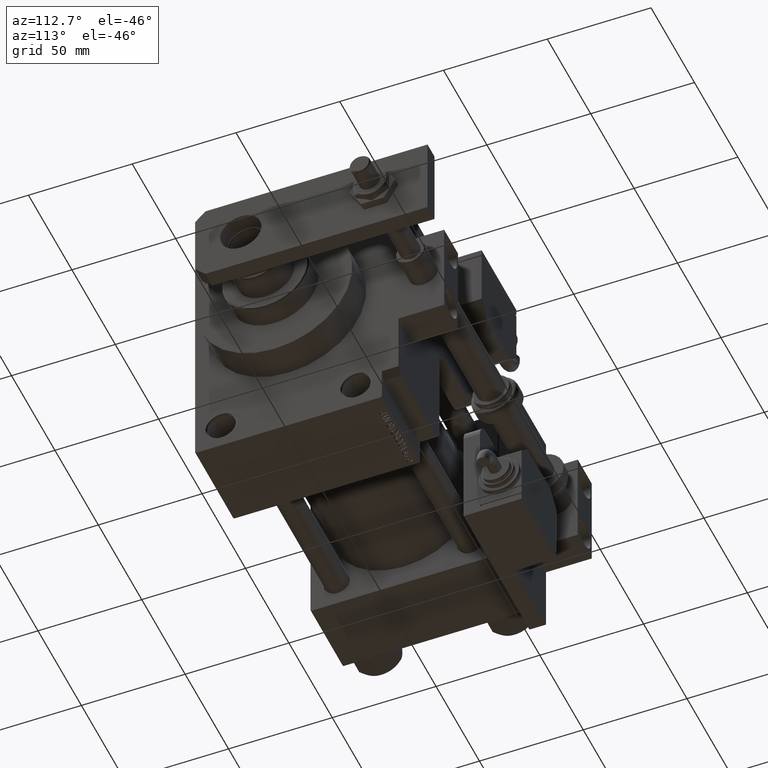
[diagram: clean part render]
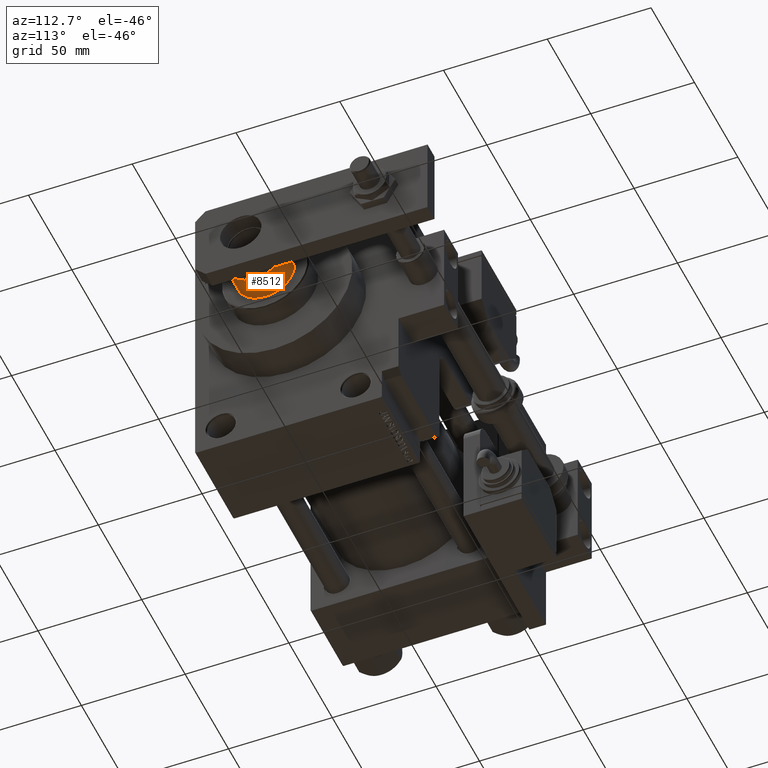
[diagram: same view with one face highlighted and labeled with its STEP entity id]
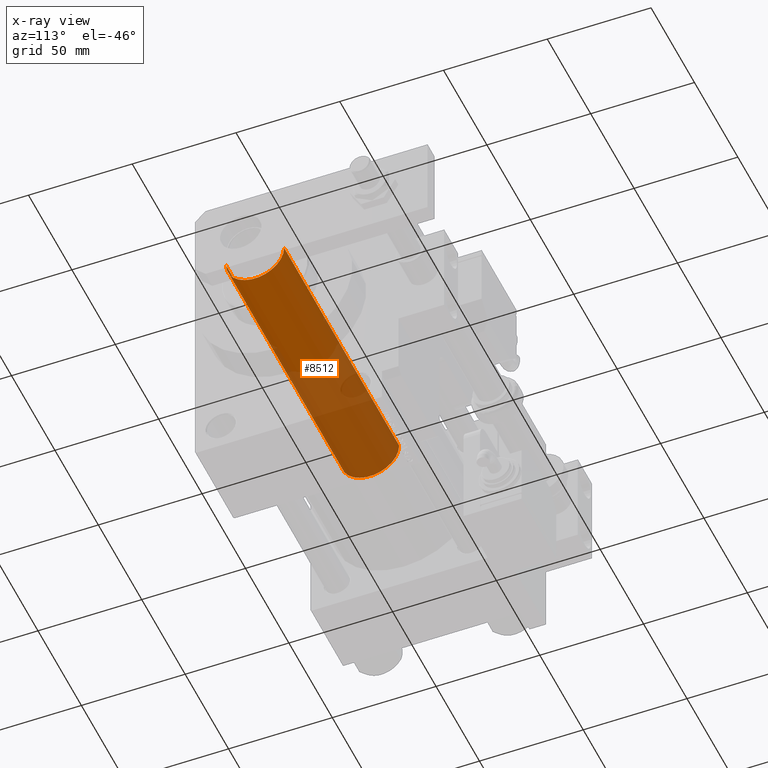
[diagram: x-ray of the same camera — body ghosted, the highlighted face saturated]
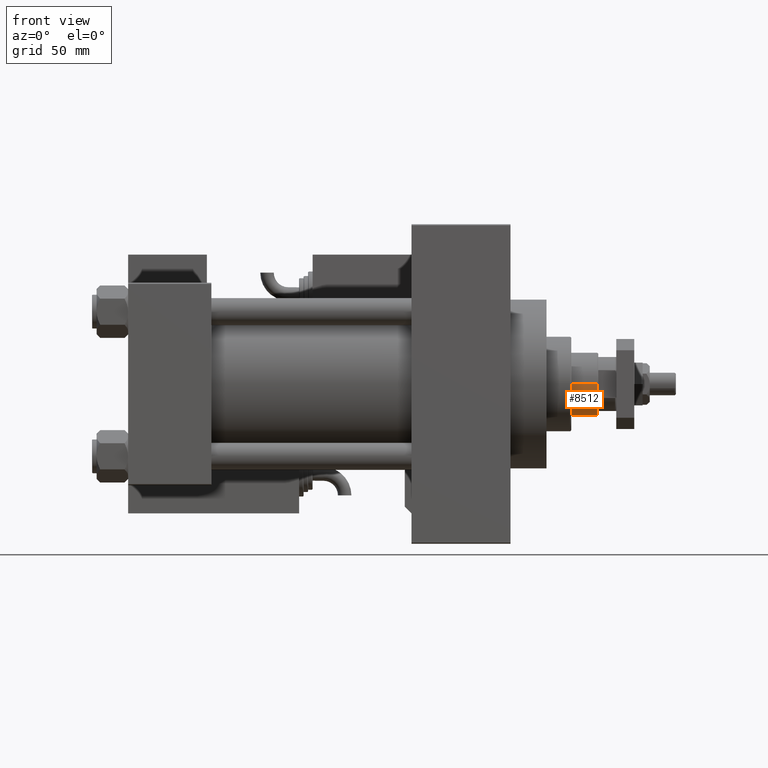
[diagram: same view with one face highlighted and labeled with its STEP entity id]
A machine part, auxiliary view. The second image highlights one B-rep face of the part: STEP entity #8512.
The next image is the same camera in x-ray: the body ghosted, the highlighted face saturated — about 55% of this face is hidden behind the body in this view.
A second angle (front view) of the same face is appended — the face is thin or edge-on in the first view.
In plain terms, the highlighted cylindrical surface (edge-blend (fillet) strip) has radius 14 mm, axis along (-1, 0, 0).
Its self-contained STEP definition (entity closure, byte-faithful):
#1543 = EDGE_LOOP ( 'NONE', ( #54420, #41003, #54295, #21299 ) ) ;
#2198 = CARTESIAN_POINT ( 'NONE',  ( -14.00000000000000000, 0.000000000000000000, 39.00000000000000000 ) ) ;
#3244 = CARTESIAN_POINT ( 'NONE',  ( 0.000000000000000000, 0.000000000000000000, 171.5000000000000000 ) ) ;
#3737 = DIRECTION ( 'NONE',  ( -0.000000000000000000, -0.000000000000000000, -1.000000000000000000 ) ) ;
#6697 = EDGE_CURVE ( 'NONE', #18591, #38470, #31091, .T. ) ;
#8078 = CARTESIAN_POINT ( 'NONE',  ( 14.00000000000000000, 1.714505518806294638E-15, 39.00000000000000000 ) ) ;
#8254 = DIRECTION ( 'NONE',  ( 0.000000000000000000, 0.000000000000000000, -1.000000000000000000 ) ) ;
#8512 = ADVANCED_FACE ( 'NONE', ( #21522 ), #54917, .T. ) ;
#8844 = CARTESIAN_POINT ( 'NONE',  ( 14.00000000000000000, 1.714505518806294638E-15, 171.5000000000000000 ) ) ;
#13126 = VERTEX_POINT ( 'NONE', #15998 ) ;
#15998 = CARTESIAN_POINT ( 'NONE',  ( -14.00000000000000000, 0.000000000000000000, 171.5000000000000000 ) ) ;
#16805 = CARTESIAN_POINT ( 'NONE',  ( 0.000000000000000000, 0.000000000000000000, 172.0000000000000000 ) ) ;
#18591 = VERTEX_POINT ( 'NONE', #8078 ) ;
#19933 = VERTEX_POINT ( 'NONE', #8844 ) ;
#20468 = AXIS2_PLACEMENT_3D ( 'NONE', #53785, #40705, #45692 ) ;
#21299 = ORIENTED_EDGE ( 'NONE', *, *, #26318, .F. ) ;
#21522 = FACE_OUTER_BOUND ( 'NONE', #1543, .T. ) ;
#26318 = EDGE_CURVE ( 'NONE', #13126, #38470, #53538, .T. ) ;
#27391 = CARTESIAN_POINT ( 'NONE',  ( -14.00000000000000000, 0.000000000000000000, 172.0000000000000000 ) ) ;
#31091 = CIRCLE ( 'NONE', #20468, 14.00000000000000000 ) ;
#36318 = VECTOR ( 'NONE', #36419, 1000.000000000000000 ) ;
#36419 = DIRECTION ( 'NONE',  ( -0.000000000000000000, -0.000000000000000000, -1.000000000000000000 ) ) ;
#38470 = VERTEX_POINT ( 'NONE', #2198 ) ;
#40705 = DIRECTION ( 'NONE',  ( 0.000000000000000000, 0.000000000000000000, 1.000000000000000000 ) ) ;
#40763 = AXIS2_PLACEMENT_3D ( 'NONE', #3244, #8254, #51542 ) ;
#41003 = ORIENTED_EDGE ( 'NONE', *, *, #50826, .T. ) ;
#41140 = LINE ( 'NONE', #44486, #36318 ) ;
#44486 = CARTESIAN_POINT ( 'NONE',  ( 14.00000000000000000, 1.714505518806294638E-15, 172.0000000000000000 ) ) ;
#45692 = DIRECTION ( 'NONE',  ( 1.000000000000000000, 0.000000000000000000, 0.000000000000000000 ) ) ;
#46550 = DIRECTION ( 'NONE',  ( -1.000000000000000000, 0.000000000000000000, 0.000000000000000000 ) ) ;
#46949 = CIRCLE ( 'NONE', #40763, 14.00000000000000000 ) ;
#48812 = DIRECTION ( 'NONE',  ( -0.000000000000000000, -0.000000000000000000, -1.000000000000000000 ) ) ;
#50268 = EDGE_CURVE ( 'NONE', #13126, #19933, #46949, .T. ) ;
#50826 = EDGE_CURVE ( 'NONE', #19933, #18591, #41140, .T. ) ;
#50830 = VECTOR ( 'NONE', #48812, 1000.000000000000000 ) ;
#51542 = DIRECTION ( 'NONE',  ( 1.000000000000000000, 0.000000000000000000, 0.000000000000000000 ) ) ;
#53538 = LINE ( 'NONE', #27391, #50830 ) ;
#53785 = CARTESIAN_POINT ( 'NONE',  ( 0.000000000000000000, 0.000000000000000000, 39.00000000000000000 ) ) ;
#54295 = ORIENTED_EDGE ( 'NONE', *, *, #6697, .T. ) ;
#54300 = AXIS2_PLACEMENT_3D ( 'NONE', #16805, #3737, #46550 ) ;
#54420 = ORIENTED_EDGE ( 'NONE', *, *, #50268, .T. ) ;
#54917 = CYLINDRICAL_SURFACE ( 'NONE', #54300, 14.00000000000000000 ) ;